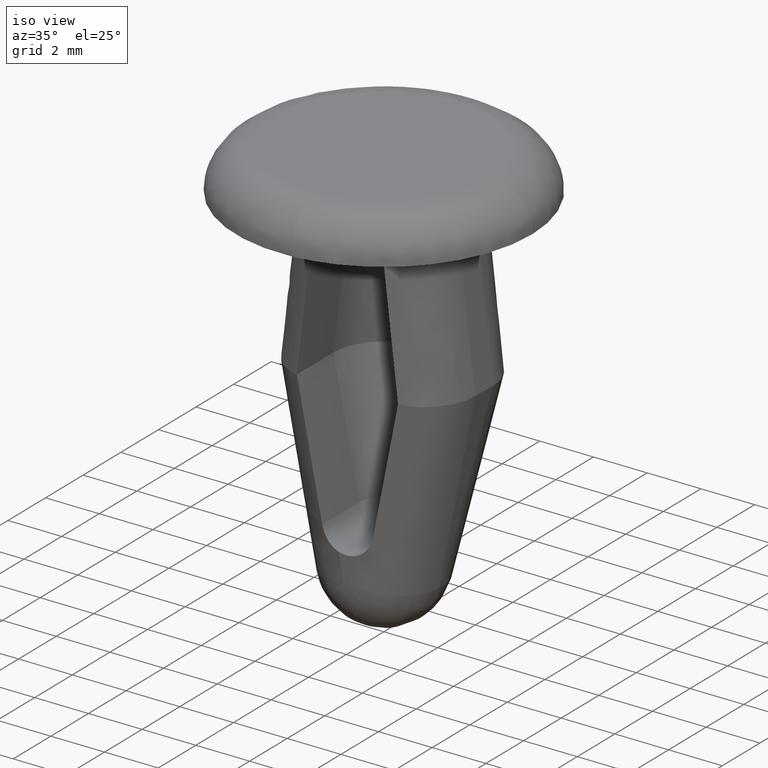
[diagram: clean part render]
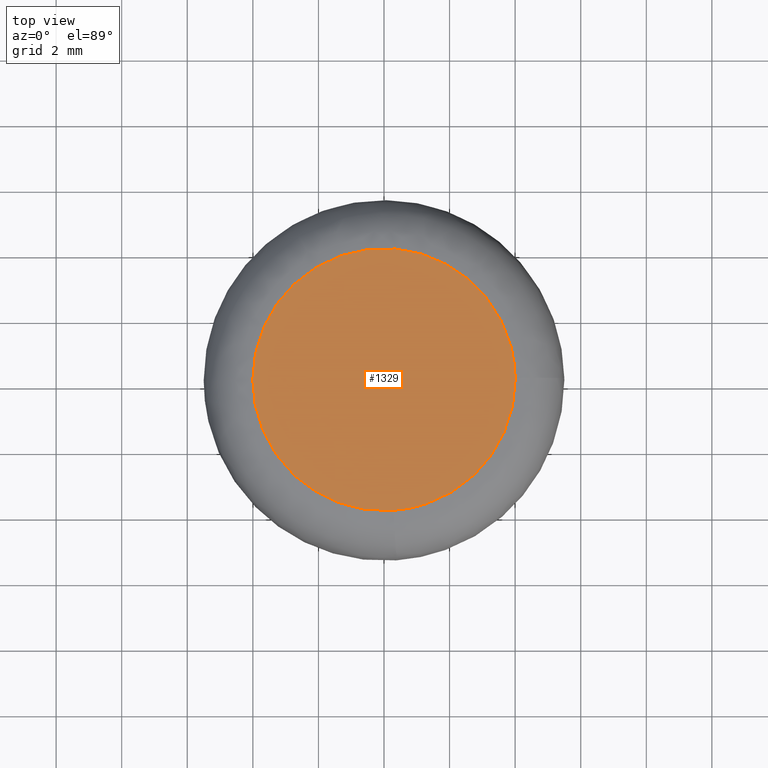
[diagram: tour spotlight — one face highlighted and labeled with its STEP entity id]
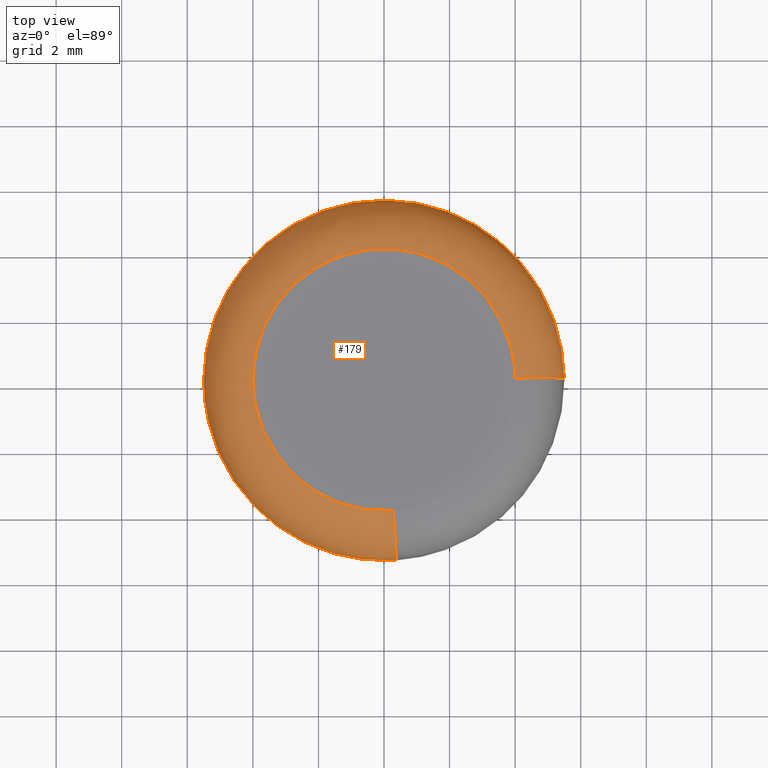
[diagram: tour spotlight — one face highlighted and labeled with its STEP entity id]
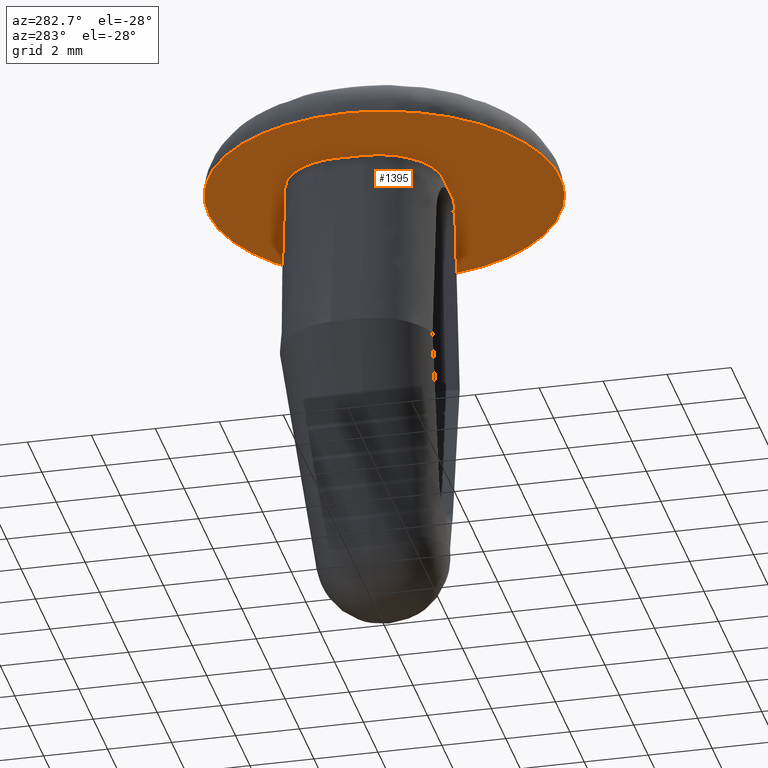
[diagram: tour spotlight — one face highlighted and labeled with its STEP entity id]
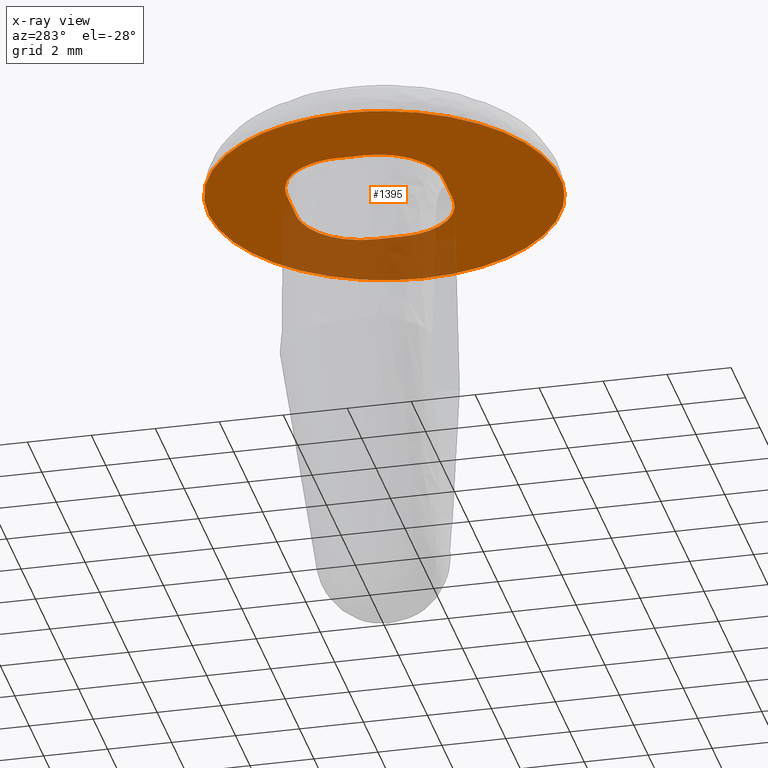
[diagram: x-ray of the same camera — body ghosted, this tour face saturated]
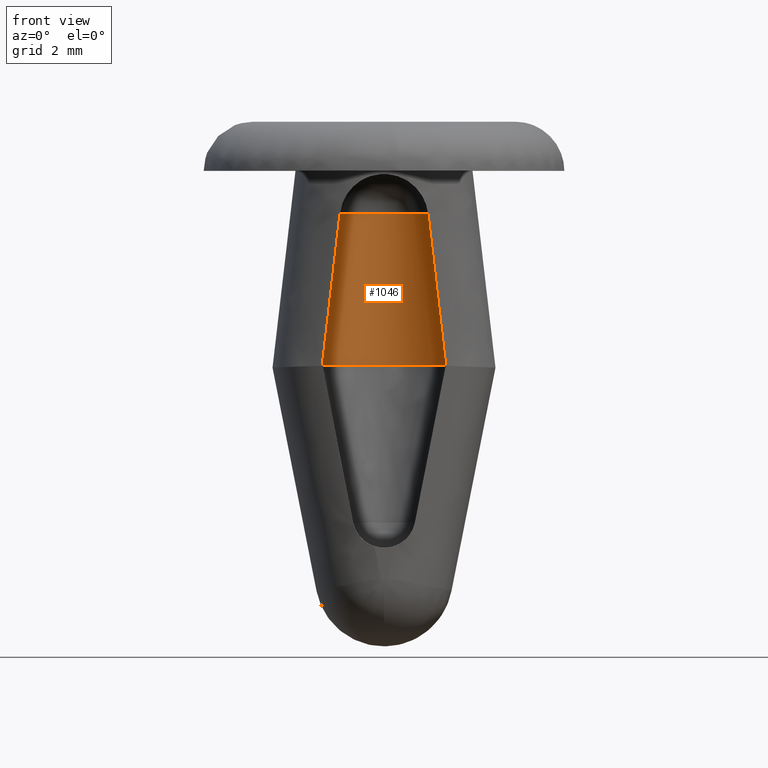
[diagram: tour spotlight — one face highlighted and labeled with its STEP entity id]
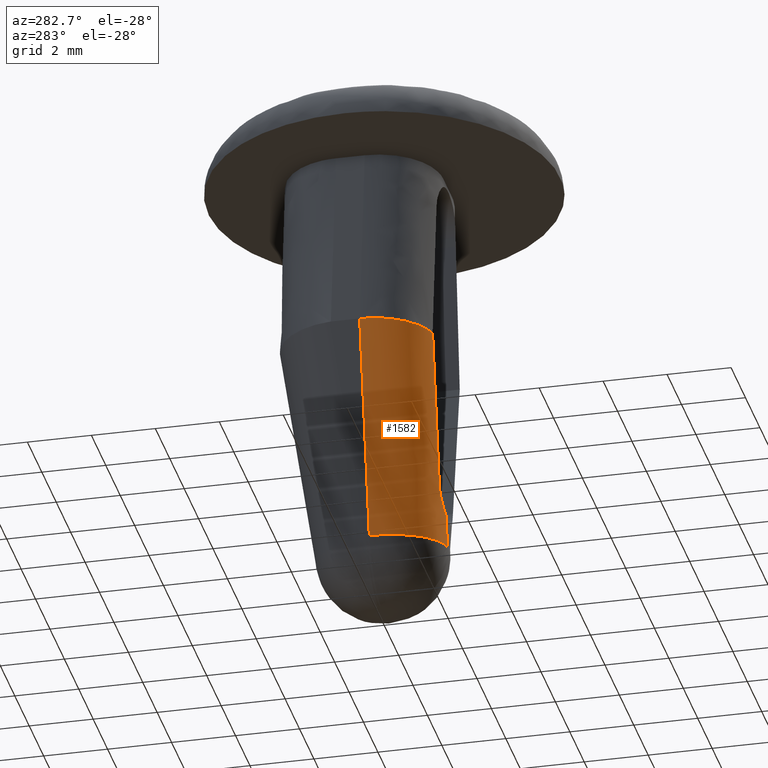
[diagram: tour spotlight — one face highlighted and labeled with its STEP entity id]
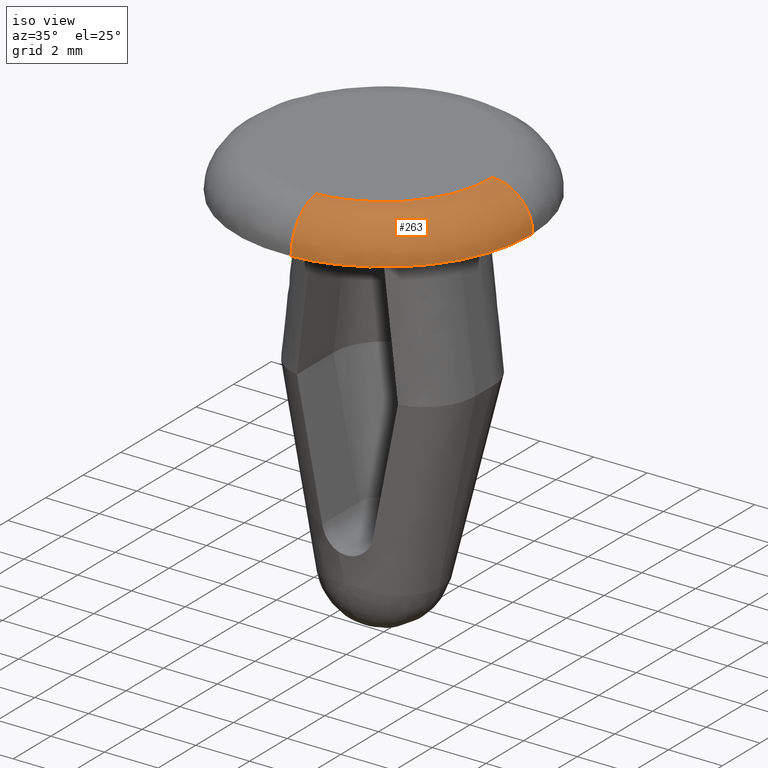
[diagram: tour spotlight — one face highlighted and labeled with its STEP entity id]
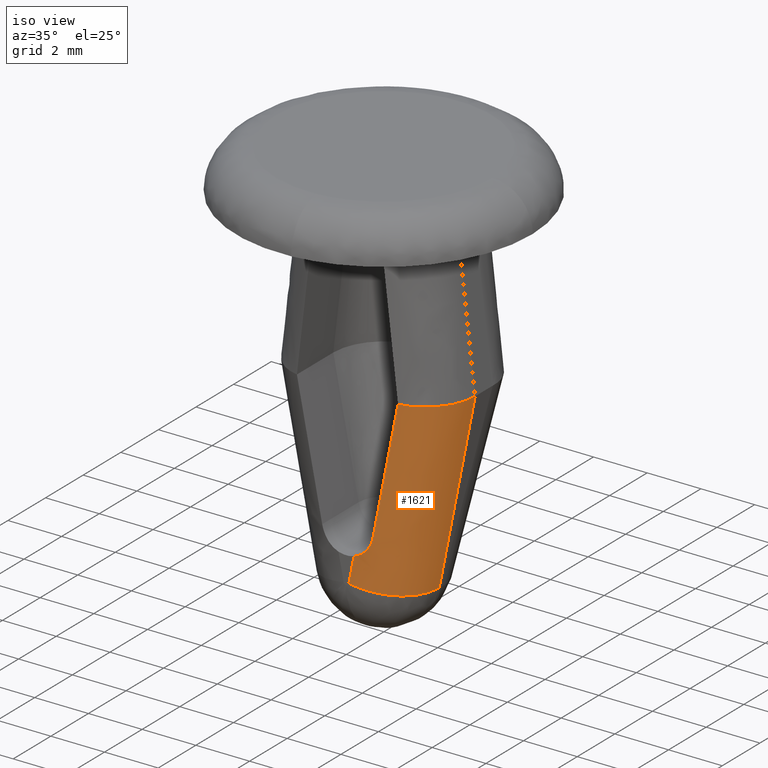
[diagram: tour spotlight — one face highlighted and labeled with its STEP entity id]
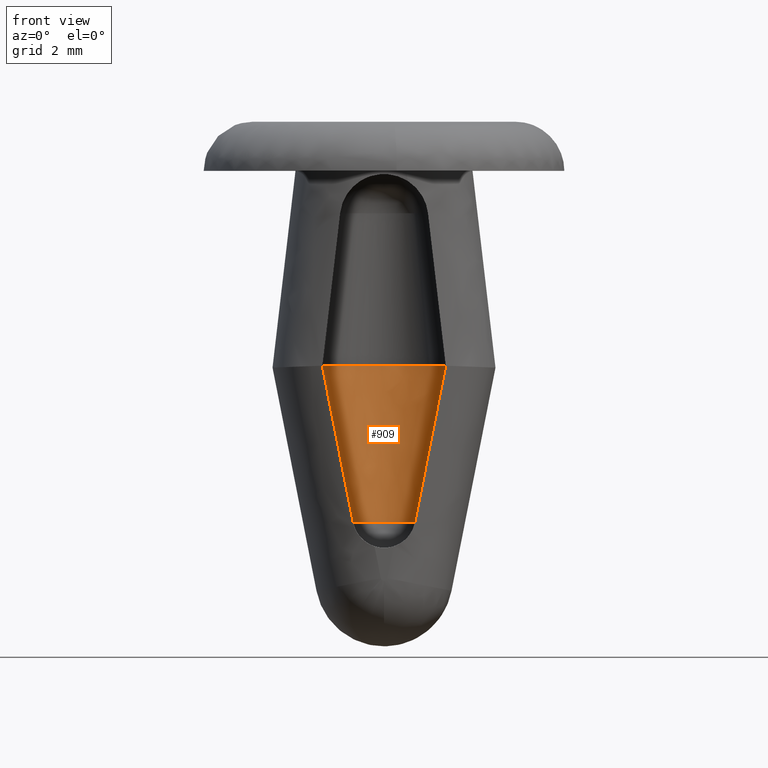
[diagram: tour spotlight — one face highlighted and labeled with its STEP entity id]
A machine part: a face-by-face anatomy tour. The part has 34 B-rep faces; the first image is the clean iso view, then the 8 largest visible faces are spotlighted one at a time (largest first), each with its STEP entity span.

Face 1 — top view, entity #1329. In plain terms, the highlighted face is a freeform B-spline surface patch.
Definition (entity closure, byte-faithful):
#79=CARTESIAN_POINT('',(0.278933006360689,-3.990262695601481,1.500000000000050));
#80=VERTEX_POINT('',#79);
#81=CARTESIAN_POINT('',(-4.0,0.0,1.500000000000100));
#82=VERTEX_POINT('',#81);
#83=CARTESIAN_POINT('',(0.278933006360689,-3.990262695601481,1.500000000000050));
#84=CARTESIAN_POINT('',(0.139636463540957,-4.000000000000001,1.500000000000100));
#85=CARTESIAN_POINT('',(0.0,-4.0,1.500000000000100));
#86=CARTESIAN_POINT('',(-4.000000000000000,-4.000000000000000,1.500000000000100));
#87=CARTESIAN_POINT('',(-4.0,0.0,1.500000000000100));
#95=(BOUNDED_CURVE()B_SPLINE_CURVE(2,(#83,#84,#85,#86,#87),.UNSPECIFIED.,.F.,.U.)B_SPLINE_CURVE_WITH_KNOTS((3,2,3),(0.737833686531518,0.750000000000000,1.0),.UNSPECIFIED.)CURVE()GEOMETRIC_REPRESENTATION_ITEM()RATIONAL_B_SPLINE_CURVE((0.972879876379417,0.985746277148491,1.0,0.707106781186548,1.0))REPRESENTATION_ITEM(''));
#96=EDGE_CURVE('',#80,#82,#95,.T.);
#98=CARTESIAN_POINT('',(3.999684176987292,0.050264159565516,1.500000000000050));
#99=VERTEX_POINT('',#98);
#100=CARTESIAN_POINT('',(-4.0,0.0,1.500000000000100));
#101=CARTESIAN_POINT('',(-4.000000000000000,4.000000000000000,1.500000000000100));
#102=CARTESIAN_POINT('',(0.0,4.0,1.500000000000100));
#103=CARTESIAN_POINT('',(3.950047719570112,4.0,1.500000000000100));
#104=CARTESIAN_POINT('',(3.999684176987292,0.050264159565516,1.500000000000050));
#112=(BOUNDED_CURVE()B_SPLINE_CURVE(2,(#100,#101,#102,#103,#104),.UNSPECIFIED.,.F.,.U.)B_SPLINE_CURVE_WITH_KNOTS((3,2,3),(0.0,0.250000000000000,0.497784295919095),.UNSPECIFIED.)CURVE()GEOMETRIC_REPRESENTATION_ITEM()RATIONAL_B_SPLINE_CURVE((1.0,0.707106781186548,1.0,0.709702639987325,0.994854295637952))REPRESENTATION_ITEM(''));
#113=EDGE_CURVE('',#82,#99,#112,.T.);
#203=CARTESIAN_POINT('',(4.0,0.0,1.500000000000100));
#204=VERTEX_POINT('',#203);
#205=CARTESIAN_POINT('',(4.0,0.0,1.500000000000100));
#206=CARTESIAN_POINT('',(4.000000000000000,-3.730147388987867,1.500000000000100));
#207=CARTESIAN_POINT('',(0.278933006360688,-3.990262695601480,1.500000000000050));
#215=(BOUNDED_CURVE()B_SPLINE_CURVE(2,(#205,#206,#207),.UNSPECIFIED.,.F.,.U.)B_SPLINE_CURVE_WITH_KNOTS((3,3),(0.500000000000000,0.737833686531519),.UNSPECIFIED.)CURVE()GEOMETRIC_REPRESENTATION_ITEM()RATIONAL_B_SPLINE_CURVE((1.0,0.721360504038055,0.972879876379419))REPRESENTATION_ITEM(''));
#216=EDGE_CURVE('',#204,#80,#215,.T.);
#248=CARTESIAN_POINT('',(3.999684176987291,0.050264159565516,1.500000000000050));
#249=CARTESIAN_POINT('',(4.0,0.025133071997503,1.500000000000100));
#250=CARTESIAN_POINT('',(4.0,0.0,1.500000000000100));
#258=(BOUNDED_CURVE()B_SPLINE_CURVE(2,(#248,#249,#250),.UNSPECIFIED.,.F.,.U.)B_SPLINE_CURVE_WITH_KNOTS((3,3),(0.497784295919095,0.500000000000000),.UNSPECIFIED.)CURVE()GEOMETRIC_REPRESENTATION_ITEM()RATIONAL_B_SPLINE_CURVE((0.994854295637952,0.997404141199223,1.0))REPRESENTATION_ITEM(''));
#259=EDGE_CURVE('',#99,#204,#258,.T.);
#1318=CARTESIAN_POINT('',(-4.399599984494448,-4.399116954924225,1.500000000000100));
#1319=CARTESIAN_POINT('',(4.399600199071169,-4.399116954924225,1.500000000000100));
#1320=CARTESIAN_POINT('',(-4.399599984494448,4.399494532435425,1.500000000000100));
#1321=CARTESIAN_POINT('',(4.399600199071169,4.399494532435425,1.500000000000100));
#1322=B_SPLINE_SURFACE_WITH_KNOTS('',1,1,((#1318,#1320),(#1319,#1321)),.UNSPECIFIED.,.F.,.F.,.U.,(2,2),(2,2),(0.0,8.799200183565617),(0.0,8.798611487359651),.UNSPECIFIED.);
#1323=ORIENTED_EDGE('',*,*,#96,.F.);
#1324=ORIENTED_EDGE('',*,*,#216,.F.);
#1325=ORIENTED_EDGE('',*,*,#259,.F.);
#1326=ORIENTED_EDGE('',*,*,#113,.F.);
#1327=EDGE_LOOP('',(#1323,#1324,#1325,#1326));
#1328=FACE_OUTER_BOUND('',#1327,.T.);
#1329=ADVANCED_FACE('',(#1328),#1322,.T.);

Face 2 — top view, entity #179. In plain terms, the highlighted face is a freeform B-spline surface patch.
Definition (entity closure, byte-faithful):
#44=CARTESIAN_POINT('',(0.271659203996866,-3.886210749802143,1.496369033502545));
#45=CARTESIAN_POINT('',(0.160437629293262,-3.893985512005349,1.496369033502545));
#46=CARTESIAN_POINT('',(0.048953447747178,-3.895386537296087,1.496369033502545));
#47=CARTESIAN_POINT('',(-3.846433089548909,-3.944339985043264,1.496369033502545));
#48=CARTESIAN_POINT('',(-3.895386537296087,-0.048953447747178,1.496369033502545));
#49=CARTESIAN_POINT('',(-3.944339985043264,3.846433089548909,1.496369033502545));
#50=CARTESIAN_POINT('',(-0.048953447747178,3.895386537296087,1.496369033502545));
#51=CARTESIAN_POINT('',(3.846433089548908,3.944339985043264,1.496369033502545));
#52=CARTESIAN_POINT('',(3.895386537296087,0.048953447747178,1.496369033502545));
#53=CARTESIAN_POINT('',(0.391643045785612,-5.602635184909329,1.616306052116059));
#54=CARTESIAN_POINT('',(0.231298188578073,-5.613843829802352,1.616306052116059));
#55=CARTESIAN_POINT('',(0.070574738846812,-5.615863646558108,1.616306052116059));
#56=CARTESIAN_POINT('',(-5.545288907711294,-5.686438385404919,1.616306052116060));
#57=CARTESIAN_POINT('',(-5.615863646558108,-0.070574738846812,1.616306052116059));
#58=CARTESIAN_POINT('',(-5.686438385404919,5.545288907711294,1.616306052116060));
#59=CARTESIAN_POINT('',(-0.070574738846812,5.615863646558108,1.616306052116059));
#60=CARTESIAN_POINT('',(5.545288907711294,5.686438385404919,1.616306052116060));
#61=CARTESIAN_POINT('',(5.615863646558108,0.070574738846813,1.616306052116059));
#62=CARTESIAN_POINT('',(0.383279377306652,-5.482989033140838,-0.104306832751968));
#63=CARTESIAN_POINT('',(0.226358738254959,-5.493958313666250,-0.104306832751968));
#64=CARTESIAN_POINT('',(0.069067591649751,-5.495934996558363,-0.104306832751968));
#65=CARTESIAN_POINT('',(-5.426867404908609,-5.565002588208112,-0.104306832751968));
#66=CARTESIAN_POINT('',(-5.495934996558363,-0.069067591649752,-0.104306832751968));
#67=CARTESIAN_POINT('',(-5.565002588208112,5.426867404908609,-0.104306832751968));
#68=CARTESIAN_POINT('',(-0.069067591649752,5.495934996558363,-0.104306832751968));
#69=CARTESIAN_POINT('',(5.426867404908609,5.565002588208113,-0.104306832751968));
#70=CARTESIAN_POINT('',(5.495934996558363,0.069067591649752,-0.104306832751968));
#78=(BOUNDED_SURFACE()B_SPLINE_SURFACE(2,2,((#44,#53,#62),(#45,#54,#63),(#46,#55,#64),(#47,#56,#65),(#48,#57,#66),(#49,#58,#67),(#50,#59,#68),(#51,#60,#69),(#52,#61,#70)),.UNSPECIFIED.,.F.,.F.,.U.)B_SPLINE_SURFACE_WITH_KNOTS((3,2,2,2,3),(3,3),(0.0,0.364266943780903,9.470949223112473,18.577631502444039,27.684313781775611),(0.0,2.733562538493477),.UNSPECIFIED.)GEOMETRIC_REPRESENTATION_ITEM()RATIONAL_B_SPLINE_SURFACE(((0.895729794887708,0.587800034132542,0.895730056065521),(0.905606553173814,0.594281407076511,0.905606817231503),(0.916342159116254,0.601326377083555,0.916342426304241),(0.647951754598225,0.425201958942120,0.647951943528663),(0.916342159116254,0.601326377083555,0.916342426304241),(0.647951754598225,0.425201958942120,0.647951943528663),(0.916342159116254,0.601326377083555,0.916342426304241),(0.647951754598225,0.425201958942120,0.647951943528663),(0.916342159116254,0.601326377083555,0.916342426304241)))REPRESENTATION_ITEM('')SURFACE());
#79=CARTESIAN_POINT('',(0.278933006360689,-3.990262695601481,1.500000000000050));
#80=VERTEX_POINT('',#79);
#81=CARTESIAN_POINT('',(-4.0,0.0,1.500000000000100));
#82=VERTEX_POINT('',#81);
#83=CARTESIAN_POINT('',(0.278933006360689,-3.990262695601481,1.500000000000050));
#84=CARTESIAN_POINT('',(0.139636463540957,-4.000000000000001,1.500000000000100));
#85=CARTESIAN_POINT('',(0.0,-4.0,1.500000000000100));
#86=CARTESIAN_POINT('',(-4.000000000000000,-4.000000000000000,1.500000000000100));
#87=CARTESIAN_POINT('',(-4.0,0.0,1.500000000000100));
#95=(BOUNDED_CURVE()B_SPLINE_CURVE(2,(#83,#84,#85,#86,#87),.UNSPECIFIED.,.F.,.U.)B_SPLINE_CURVE_WITH_KNOTS((3,2,3),(0.737833686531518,0.750000000000000,1.0),.UNSPECIFIED.)CURVE()GEOMETRIC_REPRESENTATION_ITEM()RATIONAL_B_SPLINE_CURVE((0.972879876379417,0.985746277148491,1.0,0.707106781186548,1.0))REPRESENTATION_ITEM(''));
#96=EDGE_CURVE('',#80,#82,#95,.T.);
#97=ORIENTED_EDGE('',*,*,#96,.T.);
#98=CARTESIAN_POINT('',(3.999684176987292,0.050264159565516,1.500000000000050));
#99=VERTEX_POINT('',#98);
#100=CARTESIAN_POINT('',(-4.0,0.0,1.500000000000100));
#101=CARTESIAN_POINT('',(-4.000000000000000,4.000000000000000,1.500000000000100));
#102=CARTESIAN_POINT('',(0.0,4.0,1.500000000000100));
#103=CARTESIAN_POINT('',(3.950047719570112,4.0,1.500000000000100));
#104=CARTESIAN_POINT('',(3.999684176987292,0.050264159565516,1.500000000000050));
#112=(BOUNDED_CURVE()B_SPLINE_CURVE(2,(#100,#101,#102,#103,#104),.UNSPECIFIED.,.F.,.U.)B_SPLINE_CURVE_WITH_KNOTS((3,2,3),(0.0,0.250000000000000,0.497784295919095),.UNSPECIFIED.)CURVE()GEOMETRIC_REPRESENTATION_ITEM()RATIONAL_B_SPLINE_CURVE((1.0,0.707106781186548,1.0,0.709702639987325,0.994854295637952))REPRESENTATION_ITEM(''));
#113=EDGE_CURVE('',#82,#99,#112,.T.);
#114=ORIENTED_EDGE('',*,*,#113,.T.);
#115=CARTESIAN_POINT('',(5.499565760683944,0.069111821728291,-0.000001061428578));
#116=VERTEX_POINT('',#115);
#117=CARTESIAN_POINT('',(3.999684176987292,0.050264159565516,1.500000000000050));
#118=CARTESIAN_POINT('',(5.499566813161412,0.069112533895212,1.499999999655189));
#119=CARTESIAN_POINT('',(5.499565760683944,0.069111821728291,-0.000001061428578));
#127=(BOUNDED_CURVE()B_SPLINE_CURVE(2,(#117,#118,#119),.UNSPECIFIED.,.F.,.U.)B_SPLINE_CURVE_WITH_KNOTS((3,3),(-1.734750791419524,-0.265248473058401),.UNSPECIFIED.)CURVE()GEOMETRIC_REPRESENTATION_ITEM()RATIONAL_B_SPLINE_CURVE((0.889029723491785,0.628638815969903,0.889029984156031))REPRESENTATION_ITEM(''));
#128=EDGE_CURVE('',#99,#116,#127,.T.);
#129=ORIENTED_EDGE('',*,*,#128,.T.);
#130=CARTESIAN_POINT('',(-5.500000000000000,0.0,0.0));
#131=VERTEX_POINT('',#130);
#132=CARTESIAN_POINT('',(-5.500000000000000,0.0,0.0));
#133=CARTESIAN_POINT('',(-5.500000000000004,5.500000000000001,-3.334553E-009));
#134=CARTESIAN_POINT('',(-4.683297E-013,5.499999999999994,-0.000000534048842));
#135=CARTESIAN_POINT('',(5.431316994883878,5.499999999999989,-0.000001058135667));
#136=CARTESIAN_POINT('',(5.499565760683944,0.069111821728291,-0.000001061428578));
#144=(BOUNDED_CURVE()B_SPLINE_CURVE(2,(#132,#133,#134,#135,#136),.UNSPECIFIED.,.F.,.U.)B_SPLINE_CURVE_WITH_KNOTS((3,2,3),(0.0,0.250000000000000,0.497784340615640),.UNSPECIFIED.)CURVE()GEOMETRIC_REPRESENTATION_ITEM()RATIONAL_B_SPLINE_CURVE((1.0,0.707106781186548,1.0,0.709702587622065,0.994854398512076))REPRESENTATION_ITEM(''));
#145=EDGE_CURVE('',#131,#116,#144,.T.);
#146=ORIENTED_EDGE('',*,*,#145,.F.);
#147=CARTESIAN_POINT('',(0.383528160122792,-5.486611536309216,-0.000001109396111));
#148=VERTEX_POINT('',#147);
#149=CARTESIAN_POINT('',(0.383528160122791,-5.486611536309216,-0.000001109396111));
#150=CARTESIAN_POINT('',(0.191997766891316,-5.499999999997193,-0.000001091338657));
#151=CARTESIAN_POINT('',(-1.935821E-013,-5.499999999997242,-0.000001071974877));
#152=CARTESIAN_POINT('',(-5.500000000000092,-5.499999999998670,-0.000000517276822));
#153=CARTESIAN_POINT('',(-5.500000000000000,0.0,0.0));
#161=(BOUNDED_CURVE()B_SPLINE_CURVE(2,(#149,#150,#151,#152,#153),.UNSPECIFIED.,.F.,.U.)B_SPLINE_CURVE_WITH_KNOTS((3,2,3),(0.737833834598589,0.750000000000000,1.0),.UNSPECIFIED.)CURVE()GEOMETRIC_REPRESENTATION_ITEM()RATIONAL_B_SPLINE_CURVE((0.972880189554239,0.985746450619855,1.0,0.707106781186548,1.0))REPRESENTATION_ITEM(''));
#162=EDGE_CURVE('',#148,#131,#161,.T.);
#163=ORIENTED_EDGE('',*,*,#162,.F.);
#164=CARTESIAN_POINT('',(0.278933006360688,-3.990262695601480,1.500000000000050));
#165=CARTESIAN_POINT('',(0.383530599268197,-5.486612477789081,1.499999999513471));
#166=CARTESIAN_POINT('',(0.383528160122792,-5.486611536309216,-0.000001109396111));
#174=(BOUNDED_CURVE()B_SPLINE_CURVE(2,(#164,#165,#166),.UNSPECIFIED.,.F.,.U.)B_SPLINE_CURVE_WITH_KNOTS((3,3),(-1.734750791321352,-0.265248439829858),.UNSPECIFIED.)CURVE()GEOMETRIC_REPRESENTATION_ITEM()RATIONAL_B_SPLINE_CURVE((0.869031711758499,0.614498083477023,0.869031978104414))REPRESENTATION_ITEM(''));
#175=EDGE_CURVE('',#80,#148,#174,.T.);
#176=ORIENTED_EDGE('',*,*,#175,.F.);
#177=EDGE_LOOP('',(#97,#114,#129,#146,#163,#176));
#178=FACE_OUTER_BOUND('',#177,.T.);
#179=ADVANCED_FACE('',(#178),#78,.T.);

Face 3 — auxiliary view, entity #1395. An x-ray twin of the same camera follows (body ghosted, this face saturated) — the face is partly hidden behind the body. In plain terms, the highlighted face is a freeform B-spline surface patch.
Definition (entity closure, byte-faithful):
#115=CARTESIAN_POINT('',(5.499565760683944,0.069111821728291,-0.000001061428578));
#116=VERTEX_POINT('',#115);
#130=CARTESIAN_POINT('',(-5.500000000000000,0.0,0.0));
#131=VERTEX_POINT('',#130);
#132=CARTESIAN_POINT('',(-5.500000000000000,0.0,0.0));
#133=CARTESIAN_POINT('',(-5.500000000000004,5.500000000000001,-3.334553E-009));
#134=CARTESIAN_POINT('',(-4.683297E-013,5.499999999999994,-0.000000534048842));
#135=CARTESIAN_POINT('',(5.431316994883878,5.499999999999989,-0.000001058135667));
#136=CARTESIAN_POINT('',(5.499565760683944,0.069111821728291,-0.000001061428578));
#144=(BOUNDED_CURVE()B_SPLINE_CURVE(2,(#132,#133,#134,#135,#136),.UNSPECIFIED.,.F.,.U.)B_SPLINE_CURVE_WITH_KNOTS((3,2,3),(0.0,0.250000000000000,0.497784340615640),.UNSPECIFIED.)CURVE()GEOMETRIC_REPRESENTATION_ITEM()RATIONAL_B_SPLINE_CURVE((1.0,0.707106781186548,1.0,0.709702587622065,0.994854398512076))REPRESENTATION_ITEM(''));
#145=EDGE_CURVE('',#131,#116,#144,.T.);
#147=CARTESIAN_POINT('',(0.383528160122792,-5.486611536309216,-0.000001109396111));
#148=VERTEX_POINT('',#147);
#149=CARTESIAN_POINT('',(0.383528160122791,-5.486611536309216,-0.000001109396111));
#150=CARTESIAN_POINT('',(0.191997766891316,-5.499999999997193,-0.000001091338657));
#151=CARTESIAN_POINT('',(-1.935821E-013,-5.499999999997242,-0.000001071974877));
#152=CARTESIAN_POINT('',(-5.500000000000092,-5.499999999998670,-0.000000517276822));
#153=CARTESIAN_POINT('',(-5.500000000000000,0.0,0.0));
#161=(BOUNDED_CURVE()B_SPLINE_CURVE(2,(#149,#150,#151,#152,#153),.UNSPECIFIED.,.F.,.U.)B_SPLINE_CURVE_WITH_KNOTS((3,2,3),(0.737833834598589,0.750000000000000,1.0),.UNSPECIFIED.)CURVE()GEOMETRIC_REPRESENTATION_ITEM()RATIONAL_B_SPLINE_CURVE((0.972880189554239,0.985746450619855,1.0,0.707106781186548,1.0))REPRESENTATION_ITEM(''));
#162=EDGE_CURVE('',#148,#131,#161,.T.);
#219=CARTESIAN_POINT('',(5.500000000000000,0.0,0.0));
#220=VERTEX_POINT('',#219);
#221=CARTESIAN_POINT('',(5.500000000000000,0.0,0.0));
#222=CARTESIAN_POINT('',(5.499999999999900,-5.128957086367912,-0.000000554698055));
#223=CARTESIAN_POINT('',(0.383528160122791,-5.486611536309216,-0.000001109396111));
#231=(BOUNDED_CURVE()B_SPLINE_CURVE(2,(#221,#222,#223),.UNSPECIFIED.,.F.,.U.)B_SPLINE_CURVE_WITH_KNOTS((3,3),(0.500000000000000,0.737833834598589),.UNSPECIFIED.)CURVE()GEOMETRIC_REPRESENTATION_ITEM()RATIONAL_B_SPLINE_CURVE((1.0,0.721360330566692,0.972880189554239))REPRESENTATION_ITEM(''));
#232=EDGE_CURVE('',#220,#148,#231,.T.);
#234=CARTESIAN_POINT('',(5.499565760683944,0.069111821728291,-0.000001061428578));
#235=CARTESIAN_POINT('',(5.499999999999535,0.034557275057550,-0.000000530714289));
#236=CARTESIAN_POINT('',(5.500000000000000,0.0,0.0));
#244=(BOUNDED_CURVE()B_SPLINE_CURVE(2,(#234,#235,#236),.UNSPECIFIED.,.F.,.U.)B_SPLINE_CURVE_WITH_KNOTS((3,3),(0.497784340615640,0.500000000000000),.UNSPECIFIED.)CURVE()GEOMETRIC_REPRESENTATION_ITEM()RATIONAL_B_SPLINE_CURVE((0.994854398512076,0.997404193564483,1.0))REPRESENTATION_ITEM(''));
#245=EDGE_CURVE('',#116,#220,#244,.T.);
#438=CARTESIAN_POINT('',(2.700001000000000,0.900002000000066,0.0));
#439=VERTEX_POINT('',#438);
#440=CARTESIAN_POINT('',(0.686435853301208,2.900002000000000,0.0));
#441=VERTEX_POINT('',#440);
#442=CARTESIAN_POINT('',(2.700001000000000,0.900002000000066,0.0));
#443=CARTESIAN_POINT('',(2.700000999999999,2.900002000000029,0.0));
#444=CARTESIAN_POINT('',(0.686435853301208,2.900002000000000,0.0));
#452=(BOUNDED_CURVE()B_SPLINE_CURVE(2,(#442,#443,#444),.UNSPECIFIED.,.F.,.U.)CURVE()GEOMETRIC_REPRESENTATION_ITEM()QUASI_UNIFORM_CURVE()RATIONAL_B_SPLINE_CURVE((1.0,0.707106781186548,1.0))REPRESENTATION_ITEM(''));
#453=EDGE_CURVE('',#439,#441,#452,.T.);
#560=CARTESIAN_POINT('',(-2.700001000000000,0.900002000000066,0.000008000000108));
#561=VERTEX_POINT('',#560);
#567=CARTESIAN_POINT('',(-0.686436861311942,2.900002000000000,0.0));
#568=VERTEX_POINT('',#567);
#569=CARTESIAN_POINT('',(-0.686436861311942,2.900002000000000,0.0));
#570=CARTESIAN_POINT('',(-2.700001463511605,2.900002000000014,0.000004027038195));
#571=CARTESIAN_POINT('',(-2.700001000000000,0.900002000000066,0.000008000000108));
#579=(BOUNDED_CURVE()B_SPLINE_CURVE(2,(#569,#570,#571),.UNSPECIFIED.,.F.,.U.)CURVE()GEOMETRIC_REPRESENTATION_ITEM()QUASI_UNIFORM_CURVE()RATIONAL_B_SPLINE_CURVE((1.0,0.707106781186532,1.0))REPRESENTATION_ITEM(''));
#580=EDGE_CURVE('',#568,#561,#579,.T.);
#1309=CARTESIAN_POINT('',(-0.686436861311942,2.900002000000000,0.0));
#1310=CARTESIAN_POINT('',(0.686435853301208,2.900002000000000,0.0));
#1311=QUASI_UNIFORM_CURVE('',1,(#1309,#1310),.UNSPECIFIED.,.F.,.U.);
#1312=EDGE_CURVE('',#568,#441,#1311,.T.);
#1330=CARTESIAN_POINT('',(6.049449978679865,-6.048786210632580,0.0));
#1331=CARTESIAN_POINT('',(-6.049450273722857,-6.048786210632580,0.0));
#1332=CARTESIAN_POINT('',(6.049449978679865,6.049304160599760,0.0));
#1333=CARTESIAN_POINT('',(-6.049450273722857,6.049304160599760,0.0));
#1334=B_SPLINE_SURFACE_WITH_KNOTS('',1,1,((#1330,#1332),(#1331,#1333)),.UNSPECIFIED.,.F.,.F.,.U.,(2,2),(2,2),(0.0,12.098900252402720),(0.0,12.098090371232340),.UNSPECIFIED.);
#1335=ORIENTED_EDGE('',*,*,#145,.T.);
#1336=ORIENTED_EDGE('',*,*,#245,.T.);
#1337=ORIENTED_EDGE('',*,*,#232,.T.);
#1338=ORIENTED_EDGE('',*,*,#162,.T.);
#1339=EDGE_LOOP('',(#1335,#1336,#1337,#1338));
#1340=FACE_OUTER_BOUND('',#1339,.T.);
#1341=CARTESIAN_POINT('',(-0.686436861311868,-2.0,-1.224606E-016));
#1342=VERTEX_POINT('',#1341);
#1343=CARTESIAN_POINT('',(0.686435853301304,-2.0,-1.224606E-016));
#1344=VERTEX_POINT('',#1343);
#1345=CARTESIAN_POINT('',(-0.686436861311868,-2.0,-1.224606E-016));
#1346=CARTESIAN_POINT('',(0.686435853301304,-2.0,-1.224606E-016));
#1347=QUASI_UNIFORM_CURVE('',1,(#1345,#1346),.UNSPECIFIED.,.F.,.U.);
#1348=EDGE_CURVE('',#1342,#1344,#1347,.T.);
#1349=ORIENTED_EDGE('',*,*,#1348,.T.);
#1350=CARTESIAN_POINT('',(2.700001000000000,0.0,0.0));
#1351=VERTEX_POINT('',#1350);
#1352=CARTESIAN_POINT('',(0.686435853301304,-2.0,-1.224606E-016));
#1353=CARTESIAN_POINT('',(2.700001000000089,-1.999999999999986,0.0));
#1354=CARTESIAN_POINT('',(2.700001000000000,0.0,0.0));
#1362=(BOUNDED_CURVE()B_SPLINE_CURVE(2,(#1352,#1353,#1354),.UNSPECIFIED.,.F.,.U.)CURVE()GEOMETRIC_REPRESENTATION_ITEM()QUASI_UNIFORM_CURVE()RATIONAL_B_SPLINE_CURVE((1.0,0.707106781186545,1.0))REPRESENTATION_ITEM(''));
#1363=EDGE_CURVE('',#1344,#1351,#1362,.T.);
#1364=ORIENTED_EDGE('',*,*,#1363,.T.);
#1365=CARTESIAN_POINT('',(2.700001000000000,0.900002000000066,0.0));
#1366=CARTESIAN_POINT('',(2.700001000000000,0.0,0.0));
#1367=QUASI_UNIFORM_CURVE('',1,(#1365,#1366),.UNSPECIFIED.,.F.,.U.);
#1368=EDGE_CURVE('',#439,#1351,#1367,.T.);
#1369=ORIENTED_EDGE('',*,*,#1368,.F.);
#1370=ORIENTED_EDGE('',*,*,#453,.T.);
#1371=ORIENTED_EDGE('',*,*,#1312,.F.);
#1372=ORIENTED_EDGE('',*,*,#580,.T.);
#1373=CARTESIAN_POINT('',(-2.700001000000000,0.0,0.000008000000108));
#1374=VERTEX_POINT('',#1373);
#1375=CARTESIAN_POINT('',(-2.700001000000000,0.900002000000066,0.000008000000108));
#1376=CARTESIAN_POINT('',(-2.700001000000000,0.0,0.000008000000108));
#1377=QUASI_UNIFORM_CURVE('',1,(#1375,#1376),.UNSPECIFIED.,.F.,.U.);
#1378=EDGE_CURVE('',#561,#1374,#1377,.T.);
#1379=ORIENTED_EDGE('',*,*,#1378,.T.);
#1380=CARTESIAN_POINT('',(-2.700001000000000,0.0,0.000008000000108));
#1381=CARTESIAN_POINT('',(-2.700001463511575,-1.999999999999994,0.000004027038195));
#1382=CARTESIAN_POINT('',(-0.686436861311868,-2.0,-1.224606E-016));
#1390=(BOUNDED_CURVE()B_SPLINE_CURVE(2,(#1380,#1381,#1382),.UNSPECIFIED.,.F.,.U.)CURVE()GEOMETRIC_REPRESENTATION_ITEM()QUASI_UNIFORM_CURVE()RATIONAL_B_SPLINE_CURVE((1.0,0.707106781186548,1.0))REPRESENTATION_ITEM(''));
#1391=EDGE_CURVE('',#1374,#1342,#1390,.T.);
#1392=ORIENTED_EDGE('',*,*,#1391,.T.);
#1393=EDGE_LOOP('',(#1349,#1364,#1369,#1370,#1371,#1372,#1379,#1392));
#1394=FACE_BOUND('',#1393,.T.);
#1395=ADVANCED_FACE('',(#1340,#1394),#1334,.T.);

Face 4 — front view, entity #1046. In plain terms, the highlighted face is a freeform B-spline surface patch.
Definition (entity closure, byte-faithful):
#859=CARTESIAN_POINT('',(-1.882901255705175,0.0,-5.940644620321130));
#860=VERTEX_POINT('',#859);
#885=CARTESIAN_POINT('',(1.882902511410345,0.0,-5.940638240642350));
#886=VERTEX_POINT('',#885);
#892=CARTESIAN_POINT('',(-1.882901255705175,0.0,-5.940644620321130));
#893=CARTESIAN_POINT('',(-1.882901255705175,1.882902511410346,-5.940644620321129));
#894=CARTESIAN_POINT('',(0.000000627852585,1.882902511410345,-5.940641430481740));
#895=CARTESIAN_POINT('',(1.882902511410346,1.882902511410346,-5.940638240642349));
#896=CARTESIAN_POINT('',(1.882902511410345,0.0,-5.940638240642350));
#904=(BOUNDED_CURVE()B_SPLINE_CURVE(2,(#892,#893,#894,#895,#896),.UNSPECIFIED.,.F.,.U.)B_SPLINE_CURVE_WITH_KNOTS((3,2,3),(0.0,0.500000000000000,1.0),.UNSPECIFIED.)CURVE()GEOMETRIC_REPRESENTATION_ITEM()RATIONAL_B_SPLINE_CURVE((1.0,0.707106781186547,1.0,0.707106781186547,1.0))REPRESENTATION_ITEM(''));
#905=EDGE_CURVE('',#860,#886,#904,.T.);
#977=CARTESIAN_POINT('',(1.340722477475782,0.0,-1.293396378719236));
#978=VERTEX_POINT('',#977);
#979=CARTESIAN_POINT('',(-1.340722477475782,0.0,-1.293396378719236));
#980=VERTEX_POINT('',#979);
#996=CARTESIAN_POINT('',(-1.340722477475782,0.0,-1.293396378719236));
#997=CARTESIAN_POINT('',(-1.340722477475782,1.340722477475782,-1.293396378719236));
#998=CARTESIAN_POINT('',(0.0,1.340722477475782,-1.293396378719236));
#999=CARTESIAN_POINT('',(1.340722477475782,1.340722477475782,-1.293396378719236));
#1000=CARTESIAN_POINT('',(1.340722477475782,0.0,-1.293396378719236));
#1008=(BOUNDED_CURVE()B_SPLINE_CURVE(2,(#996,#997,#998,#999,#1000),.UNSPECIFIED.,.F.,.U.)B_SPLINE_CURVE_WITH_KNOTS((3,2,3),(0.0,0.500000000000000,1.0),.UNSPECIFIED.)CURVE()GEOMETRIC_REPRESENTATION_ITEM()RATIONAL_B_SPLINE_CURVE((1.0,0.707106781186548,1.0,0.707106781186548,1.0))REPRESENTATION_ITEM(''));
#1009=EDGE_CURVE('',#980,#978,#1008,.T.);
#1014=CARTESIAN_POINT('',(1.326713170707506,-0.034741207032956,-1.177215172679188));
#1015=CARTESIAN_POINT('',(1.896146653316573,-0.049652347547427,-6.059730356512179));
#1016=CARTESIAN_POINT('',(1.363322764207106,1.363322764207102,-1.177215172679188));
#1017=CARTESIAN_POINT('',(1.948469310335595,1.948469310335588,-6.059730356512179));
#1018=CARTESIAN_POINT('',(-0.034741207032952,1.326713170707506,-1.177215172679188));
#1019=CARTESIAN_POINT('',(-0.049652347547421,1.896146653316573,-6.059730356512179));
#1020=CARTESIAN_POINT('',(-1.432805178273011,1.290103577207910,-1.177215172679188));
#1021=CARTESIAN_POINT('',(-2.047774005430436,1.843823996297559,-6.059730356512179));
#1022=CARTESIAN_POINT('',(-1.323076742125299,-0.104128397865214,-1.177215172679188));
#1023=CARTESIAN_POINT('',(-1.890949447139370,-0.148820949008934,-6.059730356512179));
#1031=(BOUNDED_SURFACE()B_SPLINE_SURFACE(1,2,((#1014,#1016,#1018,#1020,#1022),(#1015,#1017,#1019,#1021,#1023)),.UNSPECIFIED.,.F.,.F.,.U.)B_SPLINE_SURFACE_WITH_KNOTS((2,2),(3,2,3),(0.0,4.915631328078565),(0.0,3.259712593894162,6.519425187788325),.UNSPECIFIED.)GEOMETRIC_REPRESENTATION_ITEM()RATIONAL_B_SPLINE_SURFACE(((1.0,0.688354575693754,1.0,0.688354575693754,1.0),(1.0,0.688354575693754,1.0,0.688354575693754,1.0)))REPRESENTATION_ITEM('')SURFACE());
#1032=CARTESIAN_POINT('',(1.882902511410345,0.0,-5.940638240642350));
#1033=CARTESIAN_POINT('',(1.340722477475782,0.0,-1.293396378719236));
#1034=QUASI_UNIFORM_CURVE('',1,(#1032,#1033),.UNSPECIFIED.,.F.,.U.);
#1035=EDGE_CURVE('',#886,#978,#1034,.T.);
#1036=ORIENTED_EDGE('',*,*,#1035,.T.);
#1037=ORIENTED_EDGE('',*,*,#1009,.F.);
#1038=CARTESIAN_POINT('',(-1.340722477475782,0.0,-1.293396378719236));
#1039=CARTESIAN_POINT('',(-1.882901255705175,0.0,-5.940644620321130));
#1040=QUASI_UNIFORM_CURVE('',1,(#1038,#1039),.UNSPECIFIED.,.F.,.U.);
#1041=EDGE_CURVE('',#980,#860,#1040,.T.);
#1042=ORIENTED_EDGE('',*,*,#1041,.T.);
#1043=ORIENTED_EDGE('',*,*,#905,.T.);
#1044=EDGE_LOOP('',(#1036,#1037,#1042,#1043));
#1045=FACE_OUTER_BOUND('',#1044,.T.);
#1046=ADVANCED_FACE('',(#1045),#1031,.F.);

Face 5 — auxiliary view, entity #1582. In plain terms, the highlighted face is a freeform B-spline surface patch.
Definition (entity closure, byte-faithful):
#289=CARTESIAN_POINT('',(-2.060466227264435,0.0,-12.805561015660540));
#290=VERTEX_POINT('',#289);
#321=CARTESIAN_POINT('',(-0.098117512680610,-2.0,-12.419313009355999));
#322=VERTEX_POINT('',#321);
#336=CARTESIAN_POINT('',(-2.060466227264438,0.0,-12.805561015660530));
#337=CARTESIAN_POINT('',(-2.060466257621227,-0.828427124746386,-12.805560861431477));
#338=CARTESIAN_POINT('',(-1.485707626172285,-1.414213562373325,-12.692431439604650));
#339=CARTESIAN_POINT('',(-0.910948994723343,-2.000000000000263,-12.579302017777838));
#340=CARTESIAN_POINT('',(-0.098117512680609,-1.999999999999964,-12.419313009355999));
#348=(BOUNDED_CURVE()B_SPLINE_CURVE(2,(#336,#337,#338,#339,#340),.UNSPECIFIED.,.F.,.U.)B_SPLINE_CURVE_WITH_KNOTS((3,2,3),(0.0,0.500000000000000,1.0),.UNSPECIFIED.)CURVE()GEOMETRIC_REPRESENTATION_ITEM()RATIONAL_B_SPLINE_CURVE((1.0,0.923879532511252,1.0,0.923879532511252,1.0))REPRESENTATION_ITEM(''));
#349=EDGE_CURVE('',#290,#322,#348,.T.);
#1127=CARTESIAN_POINT('',(-0.940971000000000,-1.936490855540440,-10.726187999999899));
#1128=VERTEX_POINT('',#1127);
#1134=CARTESIAN_POINT('',(-0.287763925295133,-2.0,-11.455806602570640));
#1135=VERTEX_POINT('',#1134);
#1136=CARTESIAN_POINT('',(-0.287763925295133,-2.0,-11.455806602570640));
#1137=CARTESIAN_POINT('',(-0.370441789798544,-1.999999915749110,-11.429800057769370));
#1138=CARTESIAN_POINT('',(-0.447612526329010,-1.995714077472007,-11.393440162023300));
#1139=CARTESIAN_POINT('',(-0.555544073266780,-1.986118696457403,-11.323872801970820));
#1140=CARTESIAN_POINT('',(-0.590348392616208,-1.982358700292805,-11.297969913676161));
#1141=CARTESIAN_POINT('',(-0.655338324107204,-1.974504542785576,-11.242462500067401));
#1142=CARTESIAN_POINT('',(-0.685767288507437,-1.970393337610640,-11.212735104494030));
#1143=CARTESIAN_POINT('',(-0.742577037396246,-1.962311974245184,-11.149348493298451));
#1144=CARTESIAN_POINT('',(-0.769006706406844,-1.958333039801596,-11.115618137467180));
#1145=CARTESIAN_POINT('',(-0.817459379469806,-1.951018871668586,-11.044310648368221));
#1146=CARTESIAN_POINT('',(-0.860616441862861,-1.944489861712354,-10.970504185598321));
#1147=CARTESIAN_POINT('',(-0.893568160716412,-1.940190977921174,-10.891837711646041));
#1148=CARTESIAN_POINT('',(-0.921318820003438,-1.937263108014182,-10.810679939032269));
#1149=CARTESIAN_POINT('',(-0.932604282714596,-1.936490899956532,-10.768694556920240));
#1150=CARTESIAN_POINT('',(-0.940971000000000,-1.936490855540440,-10.726187999999899));
#1151=B_SPLINE_CURVE_WITH_KNOTS('',3,(#1136,#1137,#1138,#1139,#1140,#1141,#1142,#1143,#1144,#1145,#1146,#1147,#1148,#1149,#1150),.UNSPECIFIED.,.F.,.U.,(4,2,2,2,2,1,2,4),(0.0,0.250000000000002,0.375000000000002,0.500000000000002,0.625000000000001,0.750000000000001,0.875000000000000,1.0),.UNSPECIFIED.);
#1152=EDGE_CURVE('',#1135,#1128,#1151,.T.);
#1205=CARTESIAN_POINT('',(-1.882900000000000,-1.936491897229220,-5.940650999999900));
#1206=VERTEX_POINT('',#1205);
#1212=CARTESIAN_POINT('',(-0.940971000000000,-1.936490855540440,-10.726187999999899));
#1213=CARTESIAN_POINT('',(-1.198455078707803,-1.936491140295282,-9.418021900891475));
#1214=CARTESIAN_POINT('',(-1.455939157415602,-1.936491425049866,-8.109855801783048));
#1215=CARTESIAN_POINT('',(-1.713423236123404,-1.936491709803556,-6.801689702674621));
#1216=CARTESIAN_POINT('',(-1.769915490748935,-1.936491772278790,-6.514676801783047));
#1217=CARTESIAN_POINT('',(-1.826407745374469,-1.936491834754048,-6.227663900891474));
#1218=CARTESIAN_POINT('',(-1.882900000000000,-1.936491897229220,-5.940650999999900));
#1219=B_SPLINE_CURVE_WITH_KNOTS('',3,(#1212,#1213,#1214,#1215,#1216,#1217,#1218),.UNSPECIFIED.,.F.,.U.,(4,3,4),(0.000000203837344,0.004000000000000,0.004877559126782),.UNSPECIFIED.);
#1220=EDGE_CURVE('',#1128,#1206,#1219,.T.);
#1403=CARTESIAN_POINT('',(-3.400001000000000,0.0,-5.999999999999901));
#1404=VERTEX_POINT('',#1403);
#1431=CARTESIAN_POINT('',(-2.060466227264435,0.0,-12.805561015660540));
#1432=CARTESIAN_POINT('',(-3.400001000000000,0.0,-5.999999999999901));
#1433=QUASI_UNIFORM_CURVE('',1,(#1431,#1432),.UNSPECIFIED.,.F.,.U.);
#1434=EDGE_CURVE('',#290,#1404,#1433,.T.);
#1540=CARTESIAN_POINT('',(-3.400001000000000,0.0,-5.999999999999901));
#1541=CARTESIAN_POINT('',(-3.400000018433084,-1.549194055685389,-6.000001274562870));
#1542=CARTESIAN_POINT('',(-1.882900000000000,-1.936491897229220,-5.940650999999900));
#1550=(BOUNDED_CURVE()B_SPLINE_CURVE(2,(#1540,#1541,#1542),.UNSPECIFIED.,.F.,.U.)CURVE()GEOMETRIC_REPRESENTATION_ITEM()QUASI_UNIFORM_CURVE()RATIONAL_B_SPLINE_CURVE((1.0,0.790569277793662,1.0))REPRESENTATION_ITEM(''));
#1551=EDGE_CURVE('',#1404,#1206,#1550,.T.);
#1556=CARTESIAN_POINT('',(-0.013260825068231,-1.999314649951100,-12.579341237221749));
#1557=CARTESIAN_POINT('',(-1.420609563540312,-1.999314649951100,-5.429248698660000));
#1558=CARTESIAN_POINT('',(-2.116901072663940,-2.055457330529669,-12.993399577402114));
#1559=CARTESIAN_POINT('',(-3.524249811136021,-2.055457330529669,-5.843307038840367));
#1560=CARTESIAN_POINT('',(-2.025110119359562,0.087238774730708,-12.975332415104649));
#1561=CARTESIAN_POINT('',(-3.432458857831641,0.087238774730709,-5.825239876542904));
#1569=(BOUNDED_SURFACE()B_SPLINE_SURFACE(1,2,((#1556,#1558,#1560),(#1557,#1559,#1561)),.UNSPECIFIED.,.F.,.F.,.U.)B_SPLINE_SURFACE_WITH_KNOTS((2,2),(3,3),(0.0,7.287280273303295),(0.0,3.478498999687468),.UNSPECIFIED.)GEOMETRIC_REPRESENTATION_ITEM()RATIONAL_B_SPLINE_SURFACE(((1.0,0.681998360062498,1.0),(1.0,0.681998360062498,1.0)))REPRESENTATION_ITEM('')SURFACE());
#1570=ORIENTED_EDGE('',*,*,#1152,.T.);
#1571=ORIENTED_EDGE('',*,*,#1220,.T.);
#1572=ORIENTED_EDGE('',*,*,#1551,.F.);
#1573=ORIENTED_EDGE('',*,*,#1434,.F.);
#1574=ORIENTED_EDGE('',*,*,#349,.T.);
#1575=CARTESIAN_POINT('',(-0.287763925295133,-2.0,-11.455806602570640));
#1576=CARTESIAN_POINT('',(-0.098117512680610,-2.0,-12.419313009355999));
#1577=QUASI_UNIFORM_CURVE('',1,(#1575,#1576),.UNSPECIFIED.,.F.,.U.);
#1578=EDGE_CURVE('',#1135,#322,#1577,.T.);
#1579=ORIENTED_EDGE('',*,*,#1578,.F.);
#1580=EDGE_LOOP('',(#1570,#1571,#1572,#1573,#1574,#1579));
#1581=FACE_OUTER_BOUND('',#1580,.T.);
#1582=ADVANCED_FACE('',(#1581),#1569,.T.);

Face 6 — iso view, entity #263. In plain terms, the highlighted face is a freeform B-spline surface patch.
Definition (entity closure, byte-faithful):
#79=CARTESIAN_POINT('',(0.278933006360689,-3.990262695601481,1.500000000000050));
#80=VERTEX_POINT('',#79);
#98=CARTESIAN_POINT('',(3.999684176987292,0.050264159565516,1.500000000000050));
#99=VERTEX_POINT('',#98);
#115=CARTESIAN_POINT('',(5.499565760683944,0.069111821728291,-0.000001061428578));
#116=VERTEX_POINT('',#115);
#117=CARTESIAN_POINT('',(3.999684176987292,0.050264159565516,1.500000000000050));
#118=CARTESIAN_POINT('',(5.499566813161412,0.069112533895212,1.499999999655189));
#119=CARTESIAN_POINT('',(5.499565760683944,0.069111821728291,-0.000001061428578));
#127=(BOUNDED_CURVE()B_SPLINE_CURVE(2,(#117,#118,#119),.UNSPECIFIED.,.F.,.U.)B_SPLINE_CURVE_WITH_KNOTS((3,3),(-1.734750791419524,-0.265248473058401),.UNSPECIFIED.)CURVE()GEOMETRIC_REPRESENTATION_ITEM()RATIONAL_B_SPLINE_CURVE((0.889029723491785,0.628638815969903,0.889029984156031))REPRESENTATION_ITEM(''));
#128=EDGE_CURVE('',#99,#116,#127,.T.);
#147=CARTESIAN_POINT('',(0.383528160122792,-5.486611536309216,-0.000001109396111));
#148=VERTEX_POINT('',#147);
#164=CARTESIAN_POINT('',(0.278933006360688,-3.990262695601480,1.500000000000050));
#165=CARTESIAN_POINT('',(0.383530599268197,-5.486612477789081,1.499999999513471));
#166=CARTESIAN_POINT('',(0.383528160122792,-5.486611536309216,-0.000001109396111));
#174=(BOUNDED_CURVE()B_SPLINE_CURVE(2,(#164,#165,#166),.UNSPECIFIED.,.F.,.U.)B_SPLINE_CURVE_WITH_KNOTS((3,3),(-1.734750791321352,-0.265248439829858),.UNSPECIFIED.)CURVE()GEOMETRIC_REPRESENTATION_ITEM()RATIONAL_B_SPLINE_CURVE((0.869031711758499,0.614498083477023,0.869031978104414))REPRESENTATION_ITEM(''));
#175=EDGE_CURVE('',#80,#148,#174,.T.);
#180=CARTESIAN_POINT('',(3.895055161828244,0.075322081533645,1.496369033502545));
#181=CARTESIAN_POINT('',(3.895220616950747,0.062156274294662,1.496369033502544));
#182=CARTESIAN_POINT('',(3.941615894071137,-3.629668228491557,1.496369033502545));
#183=CARTESIAN_POINT('',(0.258181804950936,-3.887152866078700,1.496369033502545));
#184=CARTESIAN_POINT('',(0.244739768335677,-3.888092510400431,1.496369033502545));
#185=CARTESIAN_POINT('',(5.615385912339588,0.108589618878106,1.616306052116059));
#186=CARTESIAN_POINT('',(5.615624444099839,0.089608863683957,1.616306052116059));
#187=CARTESIAN_POINT('',(5.682511143958192,-5.232785413794058,1.616306052116060));
#188=CARTESIAN_POINT('',(0.372213077892175,-5.603993406101933,1.616306052116059));
#189=CARTESIAN_POINT('',(0.352834090969933,-5.605348063550323,1.616306052116059));
#190=CARTESIAN_POINT('',(5.495467464514165,0.106270651179518,-0.104306832751968));
#191=CARTESIAN_POINT('',(5.495700902348745,0.087695236372829,-0.104306832751968));
#192=CARTESIAN_POINT('',(5.561159214318469,-5.121037527821201,-0.104306832751968));
#193=CARTESIAN_POINT('',(0.364264342888393,-5.484318249064746,-0.104306832751968));
#194=CARTESIAN_POINT('',(0.345299200725608,-5.485643977349390,-0.104306832751968));
#202=(BOUNDED_SURFACE()B_SPLINE_SURFACE(2,2,((#180,#185,#190),(#181,#186,#191),(#182,#187,#192),(#183,#188,#193),(#184,#189,#194)),.UNSPECIFIED.,.F.,.F.,.U.)B_SPLINE_SURFACE_WITH_KNOTS((3,1,1,3),(3,3),(0.0,0.043700104703579,8.783715813462024,8.827421335742040),(0.0,2.733595329308455),.UNSPECIFIED.)GEOMETRIC_REPRESENTATION_ITEM()RATIONAL_B_SPLINE_SURFACE(((0.918918708542003,0.603017172509858,0.918918976481263),(0.917630433829128,0.602171774796706,0.917630701392752),(0.658687370778946,0.432246935667778,0.658687562839686),(0.896915135717956,0.588577884087355,0.896915397241392),(0.898100495386642,0.589355746404418,0.898100757255707)))REPRESENTATION_ITEM('')SURFACE());
#203=CARTESIAN_POINT('',(4.0,0.0,1.500000000000100));
#204=VERTEX_POINT('',#203);
#205=CARTESIAN_POINT('',(4.0,0.0,1.500000000000100));
#206=CARTESIAN_POINT('',(4.000000000000000,-3.730147388987867,1.500000000000100));
#207=CARTESIAN_POINT('',(0.278933006360688,-3.990262695601480,1.500000000000050));
#215=(BOUNDED_CURVE()B_SPLINE_CURVE(2,(#205,#206,#207),.UNSPECIFIED.,.F.,.U.)B_SPLINE_CURVE_WITH_KNOTS((3,3),(0.500000000000000,0.737833686531519),.UNSPECIFIED.)CURVE()GEOMETRIC_REPRESENTATION_ITEM()RATIONAL_B_SPLINE_CURVE((1.0,0.721360504038055,0.972879876379419))REPRESENTATION_ITEM(''));
#216=EDGE_CURVE('',#204,#80,#215,.T.);
#217=ORIENTED_EDGE('',*,*,#216,.T.);
#218=ORIENTED_EDGE('',*,*,#175,.T.);
#219=CARTESIAN_POINT('',(5.500000000000000,0.0,0.0));
#220=VERTEX_POINT('',#219);
#221=CARTESIAN_POINT('',(5.500000000000000,0.0,0.0));
#222=CARTESIAN_POINT('',(5.499999999999900,-5.128957086367912,-0.000000554698055));
#223=CARTESIAN_POINT('',(0.383528160122791,-5.486611536309216,-0.000001109396111));
#231=(BOUNDED_CURVE()B_SPLINE_CURVE(2,(#221,#222,#223),.UNSPECIFIED.,.F.,.U.)B_SPLINE_CURVE_WITH_KNOTS((3,3),(0.500000000000000,0.737833834598589),.UNSPECIFIED.)CURVE()GEOMETRIC_REPRESENTATION_ITEM()RATIONAL_B_SPLINE_CURVE((1.0,0.721360330566692,0.972880189554239))REPRESENTATION_ITEM(''));
#232=EDGE_CURVE('',#220,#148,#231,.T.);
#233=ORIENTED_EDGE('',*,*,#232,.F.);
#234=CARTESIAN_POINT('',(5.499565760683944,0.069111821728291,-0.000001061428578));
#235=CARTESIAN_POINT('',(5.499999999999535,0.034557275057550,-0.000000530714289));
#236=CARTESIAN_POINT('',(5.500000000000000,0.0,0.0));
#244=(BOUNDED_CURVE()B_SPLINE_CURVE(2,(#234,#235,#236),.UNSPECIFIED.,.F.,.U.)B_SPLINE_CURVE_WITH_KNOTS((3,3),(0.497784340615640,0.500000000000000),.UNSPECIFIED.)CURVE()GEOMETRIC_REPRESENTATION_ITEM()RATIONAL_B_SPLINE_CURVE((0.994854398512076,0.997404193564483,1.0))REPRESENTATION_ITEM(''));
#245=EDGE_CURVE('',#116,#220,#244,.T.);
#246=ORIENTED_EDGE('',*,*,#245,.F.);
#247=ORIENTED_EDGE('',*,*,#128,.F.);
#248=CARTESIAN_POINT('',(3.999684176987291,0.050264159565516,1.500000000000050));
#249=CARTESIAN_POINT('',(4.0,0.025133071997503,1.500000000000100));
#250=CARTESIAN_POINT('',(4.0,0.0,1.500000000000100));
#258=(BOUNDED_CURVE()B_SPLINE_CURVE(2,(#248,#249,#250),.UNSPECIFIED.,.F.,.U.)B_SPLINE_CURVE_WITH_KNOTS((3,3),(0.497784295919095,0.500000000000000),.UNSPECIFIED.)CURVE()GEOMETRIC_REPRESENTATION_ITEM()RATIONAL_B_SPLINE_CURVE((0.994854295637952,0.997404141199223,1.0))REPRESENTATION_ITEM(''));
#259=EDGE_CURVE('',#99,#204,#258,.T.);
#260=ORIENTED_EDGE('',*,*,#259,.T.);
#261=EDGE_LOOP('',(#217,#218,#233,#246,#247,#260));
#262=FACE_OUTER_BOUND('',#261,.T.);
#263=ADVANCED_FACE('',(#262),#202,.T.);

Face 7 — iso view, entity #1621. In plain terms, the highlighted face is a freeform B-spline surface patch.
Definition (entity closure, byte-faithful):
#377=CARTESIAN_POINT('',(2.060467000000000,0.0,-12.805556999999901));
#378=VERTEX_POINT('',#377);
#392=CARTESIAN_POINT('',(0.098117459996054,-2.0,-12.419313187288560));
#393=VERTEX_POINT('',#392);
#394=CARTESIAN_POINT('',(2.060466999999995,1.431147E-014,-12.805556999999849));
#395=CARTESIAN_POINT('',(2.060466338492981,-1.999999999997053,-12.805560360820687));
#396=CARTESIAN_POINT('',(0.098117459996054,-2.0,-12.419313187288560));
#404=(BOUNDED_CURVE()B_SPLINE_CURVE(2,(#394,#395,#396),.UNSPECIFIED.,.F.,.U.)CURVE()GEOMETRIC_REPRESENTATION_ITEM()QUASI_UNIFORM_CURVE()RATIONAL_B_SPLINE_CURVE((1.0,0.707106781186548,1.0))REPRESENTATION_ITEM(''));
#405=EDGE_CURVE('',#378,#393,#404,.T.);
#1060=CARTESIAN_POINT('',(1.882902511410345,-1.936491536565055,-5.940638240642350));
#1061=VERTEX_POINT('',#1060);
#1087=CARTESIAN_POINT('',(0.940966835516280,-1.936491767458290,-10.726186861776959));
#1088=VERTEX_POINT('',#1087);
#1094=CARTESIAN_POINT('',(1.882902511410345,-1.936491536565055,-5.940638240642350));
#1095=CARTESIAN_POINT('',(1.625417277808371,-1.936491599681340,-7.248804112432763));
#1096=CARTESIAN_POINT('',(1.367932044206394,-1.936491662798010,-8.556969984223175));
#1097=CARTESIAN_POINT('',(1.110446810604420,-1.936491725914288,-9.865135856013586));
#1098=CARTESIAN_POINT('',(1.053953485575039,-1.936491739762261,-10.152152857934709));
#1099=CARTESIAN_POINT('',(0.997460160545661,-1.936491753610321,-10.439169859855840));
#1100=CARTESIAN_POINT('',(0.940966835516280,-1.936491767458290,-10.726186861776959));
#1101=B_SPLINE_CURVE_WITH_KNOTS('',3,(#1094,#1095,#1096,#1097,#1098,#1099,#1100),.UNSPECIFIED.,.F.,.U.,(4,3,4),(0.000000203837349,0.004000000000000,0.004877571818418),.UNSPECIFIED.);
#1102=EDGE_CURVE('',#1061,#1088,#1101,.T.);
#1154=CARTESIAN_POINT('',(0.287763472535683,-2.0,-11.455806744988120));
#1155=VERTEX_POINT('',#1154);
#1169=CARTESIAN_POINT('',(0.940966835516280,-1.936491767458290,-10.726186861776959));
#1170=CARTESIAN_POINT('',(0.924234128218563,-1.936491774269013,-10.811198115953619));
#1171=CARTESIAN_POINT('',(0.896588527087490,-1.939571902236978,-10.891960560645980));
#1172=CARTESIAN_POINT('',(0.839284119421068,-1.947717407293142,-11.006979400643420));
#1173=CARTESIAN_POINT('',(0.817347750245597,-1.951035868159272,-11.044457164013631));
#1174=CARTESIAN_POINT('',(0.769297062207696,-1.958289395175314,-11.115199648861340));
#1175=CARTESIAN_POINT('',(0.743087701705373,-1.962236659502199,-11.148721062063011));
#1176=CARTESIAN_POINT('',(0.686338332526431,-1.970315022752130,-11.212149012753400));
#1177=CARTESIAN_POINT('',(0.655741810210160,-1.974454617628420,-11.242104674107740));
#1178=CARTESIAN_POINT('',(0.590233979915765,-1.982373974258041,-11.298077512488410));
#1179=CARTESIAN_POINT('',(0.555953442161691,-1.986074905149657,-11.323568650760571));
#1180=CARTESIAN_POINT('',(0.484417663457602,-1.992449532426842,-11.369755287011589));
#1181=CARTESIAN_POINT('',(0.447162315689705,-1.995125190911976,-11.390450358469611));
#1182=CARTESIAN_POINT('',(0.369584038392454,-1.998903358869048,-11.426960499783229));
#1183=CARTESIAN_POINT('',(0.329096179476837,-2.000000000000002,-11.442805371405919));
#1184=CARTESIAN_POINT('',(0.287763472535689,-2.0,-11.455806744988100));
#1185=B_SPLINE_CURVE_WITH_KNOTS('',3,(#1169,#1170,#1171,#1172,#1173,#1174,#1175,#1176,#1177,#1178,#1179,#1180,#1181,#1182,#1183,#1184),.UNSPECIFIED.,.F.,.U.,(4,2,2,2,2,2,2,4),(0.0,0.250000000000000,0.375000000000000,0.500000000000000,0.625000000000000,0.750000000000000,0.875000000000000,1.0),.UNSPECIFIED.);
#1186=EDGE_CURVE('',#1088,#1155,#1185,.T.);
#1476=CARTESIAN_POINT('',(3.400000511408190,0.0,-5.999987240659770));
#1477=VERTEX_POINT('',#1476);
#1483=CARTESIAN_POINT('',(3.400000511408190,0.0,-5.999987240659770));
#1484=CARTESIAN_POINT('',(2.060467000000000,0.0,-12.805556999999901));
#1485=QUASI_UNIFORM_CURVE('',1,(#1483,#1484),.UNSPECIFIED.,.F.,.U.);
#1486=EDGE_CURVE('',#1477,#378,#1485,.T.);
#1583=CARTESIAN_POINT('',(1.419771682079710,-1.999314649951099,-5.433489966827993));
#1584=CARTESIAN_POINT('',(0.012423591660670,-1.999314649951099,-12.583595226197071));
#1585=CARTESIAN_POINT('',(3.560565847082975,-2.056448902391989,-5.854860348214997));
#1586=CARTESIAN_POINT('',(2.153217756663935,-2.056448902391989,-13.004965607584074));
#1587=CARTESIAN_POINT('',(3.429828689506139,0.122097079069706,-5.829127483818141));
#1588=CARTESIAN_POINT('',(2.022480599087098,0.122097079069706,-12.979232743187220));
#1596=(BOUNDED_SURFACE()B_SPLINE_SURFACE(1,2,((#1583,#1585,#1587),(#1584,#1586,#1588)),.UNSPECIFIED.,.F.,.F.,.U.)B_SPLINE_SURFACE_WITH_KNOTS((2,2),(3,3),(0.0,7.287292629479309),(0.0,3.520084247134666),.UNSPECIFIED.)GEOMETRIC_REPRESENTATION_ITEM()RATIONAL_B_SPLINE_SURFACE(((1.0,0.675590207615660,1.0),(1.0,0.675590207615660,1.0)))REPRESENTATION_ITEM('')SURFACE());
#1597=ORIENTED_EDGE('',*,*,#1102,.T.);
#1598=ORIENTED_EDGE('',*,*,#1186,.T.);
#1599=CARTESIAN_POINT('',(0.098117459996054,-2.0,-12.419313187288560));
#1600=CARTESIAN_POINT('',(0.287763472535683,-2.0,-11.455806744988120));
#1601=QUASI_UNIFORM_CURVE('',1,(#1599,#1600),.UNSPECIFIED.,.F.,.U.);
#1602=EDGE_CURVE('',#393,#1155,#1601,.T.);
#1603=ORIENTED_EDGE('',*,*,#1602,.F.);
#1604=ORIENTED_EDGE('',*,*,#405,.F.);
#1605=ORIENTED_EDGE('',*,*,#1486,.F.);
#1606=CARTESIAN_POINT('',(3.400000511408190,0.0,-5.999987240659770));
#1607=CARTESIAN_POINT('',(3.400000320885402,-1.549192901559592,-5.999988208623729));
#1608=CARTESIAN_POINT('',(1.882902511410345,-1.936491536565055,-5.940638240642350));
#1616=(BOUNDED_CURVE()B_SPLINE_CURVE(2,(#1606,#1607,#1608),.UNSPECIFIED.,.F.,.U.)CURVE()GEOMETRIC_REPRESENTATION_ITEM()QUASI_UNIFORM_CURVE()RATIONAL_B_SPLINE_CURVE((1.0,0.790569498654542,1.0))REPRESENTATION_ITEM(''));
#1617=EDGE_CURVE('',#1477,#1061,#1616,.T.);
#1618=ORIENTED_EDGE('',*,*,#1617,.T.);
#1619=EDGE_LOOP('',(#1597,#1598,#1603,#1604,#1605,#1618));
#1620=FACE_OUTER_BOUND('',#1619,.T.);
#1621=ADVANCED_FACE('',(#1620),#1596,.T.);

Face 8 — front view, entity #909. In plain terms, the highlighted face is a freeform B-spline surface patch.
Definition (entity closure, byte-faithful):
#841=CARTESIAN_POINT('',(-0.917383511135722,-0.008005884615103,-10.845825577305330));
#842=CARTESIAN_POINT('',(-1.906966998880158,-0.016641848880566,-5.818008557225775));
#843=CARTESIAN_POINT('',(-0.925673847343371,0.941972550537566,-10.845825577305328));
#844=CARTESIAN_POINT('',(-1.924200137873505,1.958080285858064,-5.818008557225776));
#845=CARTESIAN_POINT('',(0.024015215175302,0.917104067231337,-10.845825577305330));
#846=CARTESIAN_POINT('',(0.049920477373320,1.906386118259095,-5.818008557225775));
#847=CARTESIAN_POINT('',(0.973704277693976,0.892235583925108,-10.845825577305328));
#848=CARTESIAN_POINT('',(2.024041092620145,1.854691950660125,-5.818008557225776));
#849=CARTESIAN_POINT('',(0.915707273290082,-0.056007056125277,-10.845825577305330));
#850=CARTESIAN_POINT('',(1.903482599809203,-0.116421983215187,-5.818008557225775));
#858=(BOUNDED_SURFACE()B_SPLINE_SURFACE(1,2,((#841,#843,#845,#847,#849),(#842,#844,#846,#848,#850)),.UNSPECIFIED.,.F.,.F.,.U.)B_SPLINE_SURFACE_WITH_KNOTS((2,2),(3,2,3),(0.0,5.124284735111514),(0.0,3.237961157108940,6.475922314217881),.UNSPECIFIED.)GEOMETRIC_REPRESENTATION_ITEM()RATIONAL_B_SPLINE_SURFACE(((1.0,0.694658370458997,1.0,0.694658370458997,1.0),(1.0,0.694658370458997,1.0,0.694658370458997,1.0)))REPRESENTATION_ITEM('')SURFACE());
#859=CARTESIAN_POINT('',(-1.882901255705175,0.0,-5.940644620321130));
#860=VERTEX_POINT('',#859);
#861=CARTESIAN_POINT('',(-0.940966835516280,0.0,-10.726186861776959));
#862=VERTEX_POINT('',#861);
#863=CARTESIAN_POINT('',(-1.882901255705175,0.0,-5.940644620321130));
#864=CARTESIAN_POINT('',(-0.940966835516280,0.0,-10.726186861776959));
#865=QUASI_UNIFORM_CURVE('',1,(#863,#864),.UNSPECIFIED.,.F.,.U.);
#866=EDGE_CURVE('',#860,#862,#865,.T.);
#867=ORIENTED_EDGE('',*,*,#866,.T.);
#868=CARTESIAN_POINT('',(0.940966835516280,0.0,-10.726186861776959));
#869=VERTEX_POINT('',#868);
#870=CARTESIAN_POINT('',(-0.940966835516280,0.0,-10.726186861776959));
#871=CARTESIAN_POINT('',(-0.940966835516280,0.940966835516280,-10.726186861776961));
#872=CARTESIAN_POINT('',(0.0,0.940966835516280,-10.726186861776959));
#873=CARTESIAN_POINT('',(0.940966835516280,0.940966835516280,-10.726186861776961));
#874=CARTESIAN_POINT('',(0.940966835516280,0.0,-10.726186861776959));
#882=(BOUNDED_CURVE()B_SPLINE_CURVE(2,(#870,#871,#872,#873,#874),.UNSPECIFIED.,.F.,.U.)B_SPLINE_CURVE_WITH_KNOTS((3,2,3),(0.0,0.500000000000000,1.0),.UNSPECIFIED.)CURVE()GEOMETRIC_REPRESENTATION_ITEM()RATIONAL_B_SPLINE_CURVE((1.0,0.707106781186548,1.0,0.707106781186548,1.0))REPRESENTATION_ITEM(''));
#883=EDGE_CURVE('',#862,#869,#882,.T.);
#884=ORIENTED_EDGE('',*,*,#883,.T.);
#885=CARTESIAN_POINT('',(1.882902511410345,0.0,-5.940638240642350));
#886=VERTEX_POINT('',#885);
#887=CARTESIAN_POINT('',(0.940966835516280,0.0,-10.726186861776959));
#888=CARTESIAN_POINT('',(1.882902511410345,0.0,-5.940638240642350));
#889=QUASI_UNIFORM_CURVE('',1,(#887,#888),.UNSPECIFIED.,.F.,.U.);
#890=EDGE_CURVE('',#869,#886,#889,.T.);
#891=ORIENTED_EDGE('',*,*,#890,.T.);
#892=CARTESIAN_POINT('',(-1.882901255705175,0.0,-5.940644620321130));
#893=CARTESIAN_POINT('',(-1.882901255705175,1.882902511410346,-5.940644620321129));
#894=CARTESIAN_POINT('',(0.000000627852585,1.882902511410345,-5.940641430481740));
#895=CARTESIAN_POINT('',(1.882902511410346,1.882902511410346,-5.940638240642349));
#896=CARTESIAN_POINT('',(1.882902511410345,0.0,-5.940638240642350));
#904=(BOUNDED_CURVE()B_SPLINE_CURVE(2,(#892,#893,#894,#895,#896),.UNSPECIFIED.,.F.,.U.)B_SPLINE_CURVE_WITH_KNOTS((3,2,3),(0.0,0.500000000000000,1.0),.UNSPECIFIED.)CURVE()GEOMETRIC_REPRESENTATION_ITEM()RATIONAL_B_SPLINE_CURVE((1.0,0.707106781186547,1.0,0.707106781186547,1.0))REPRESENTATION_ITEM(''));
#905=EDGE_CURVE('',#860,#886,#904,.T.);
#906=ORIENTED_EDGE('',*,*,#905,.F.);
#907=EDGE_LOOP('',(#867,#884,#891,#906));
#908=FACE_OUTER_BOUND('',#907,.T.);
#909=ADVANCED_FACE('',(#908),#858,.F.);